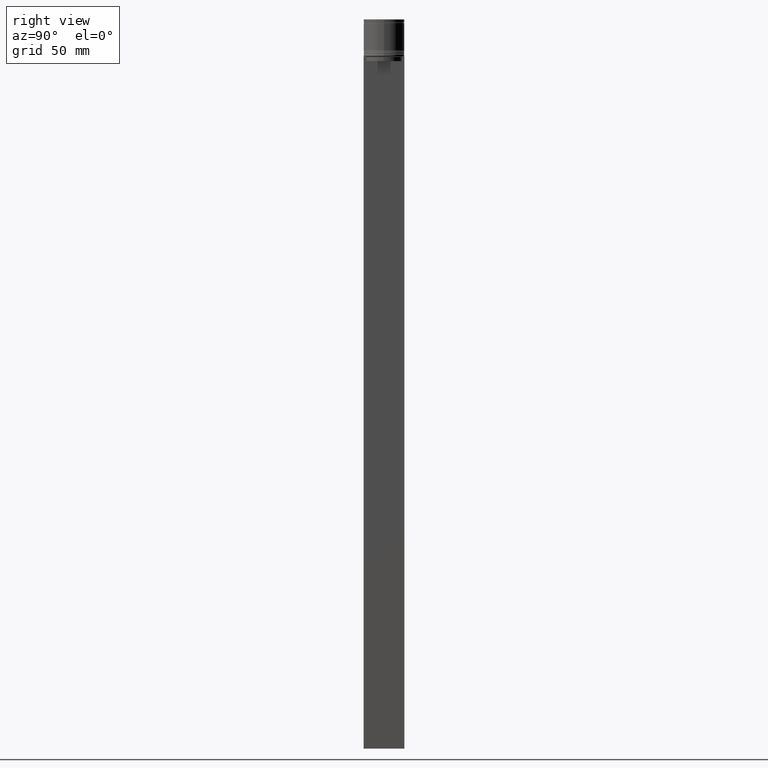
[diagram: clean part render]
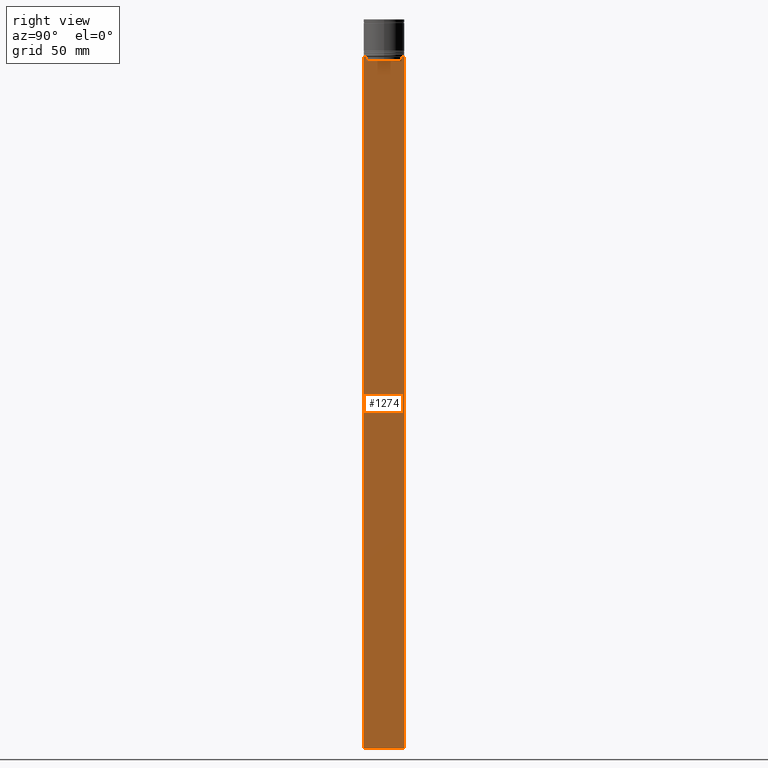
[diagram: same view with one face highlighted and labeled with its STEP entity id]
A machine part, right view. The second image highlights one B-rep face of the part: STEP entity #1274.
In plain terms, the highlighted planar face has unit normal (-1, 0, 0).
Its self-contained STEP definition (entity closure, byte-faithful):
#13 = EDGE_CURVE ( 'NONE', #752, #1765, #262, .T. ) ;
#17 = VECTOR ( 'NONE', #1455, 1000.000000000000000 ) ;
#32 = CARTESIAN_POINT ( 'NONE',  ( 0.5000000000000000000, -10.88852607105297032, -22.99999999999999645 ) ) ;
#33 = EDGE_CURVE ( 'NONE', #1561, #1200, #1703, .T. ) ;
#71 = CARTESIAN_POINT ( 'NONE',  ( 0.5000000000000000000, -12.49999999999999289, 2.519992006393609874 ) ) ;
#87 = VECTOR ( 'NONE', #829, 1000.000000000000000 ) ;
#131 = VECTOR ( 'NONE', #1801, 1000.000000000000000 ) ;
#150 = CARTESIAN_POINT ( 'NONE',  ( 0.5000000000000000000, -12.49999999999999289, -22.50000000000000000 ) ) ;
#161 = CARTESIAN_POINT ( 'NONE',  ( 0.5000000000000000000, -11.38902980942626897, -22.50000000000000000 ) ) ;
#166 = DIRECTION ( 'NONE',  ( 0.000000000000000000, -1.000000000000000000, 0.000000000000000000 ) ) ;
#175 = CARTESIAN_POINT ( 'NONE',  ( 0.5000000000000000000, -10.88852607105296855, -25.50000000000000000 ) ) ;
#181 = ORIENTED_EDGE ( 'NONE', *, *, #384, .T. ) ;
#203 = LINE ( 'NONE', #849, #1368 ) ;
#210 = CARTESIAN_POINT ( 'NONE',  ( 0.5000000000000000000, 12.50000000000000711, -446.5000000000000000 ) ) ;
#235 = CARTESIAN_POINT ( 'NONE',  ( 0.5000000000000000000, 11.38902980942626897, -22.50000000000000000 ) ) ;
#262 = B_SPLINE_CURVE_WITH_KNOTS ( 'NONE', 3,
 ( #235, #565, #1552, #412 ),
 .UNSPECIFIED., .F., .F.,
 ( 4, 4 ),
 ( 0.01935560801904635808, 0.02006307108468587813 ),
 .UNSPECIFIED. ) ;
#277 = DIRECTION ( 'NONE',  ( -1.000000000000000000, 0.000000000000000000, 0.000000000000000000 ) ) ;
#300 = EDGE_CURVE ( 'NONE', #1186, #1757, #507, .T. ) ;
#341 = CARTESIAN_POINT ( 'NONE',  ( 0.5000000000000000000, -12.49999999999999289, -22.50000000000000000 ) ) ;
#349 = ORIENTED_EDGE ( 'NONE', *, *, #1043, .T. ) ;
#370 = CARTESIAN_POINT ( 'NONE',  ( 0.5000000000000000000, -10.88852607105297032, 0.000000000000000000 ) ) ;
#384 = EDGE_CURVE ( 'NONE', #885, #2085, #1313, .T. ) ;
#400 = ORIENTED_EDGE ( 'NONE', *, *, #981, .T. ) ;
#402 = VERTEX_POINT ( 'NONE', #619 ) ;
#407 = DIRECTION ( 'NONE',  ( 0.000000000000000000, 0.000000000000000000, -1.000000000000000000 ) ) ;
#412 = CARTESIAN_POINT ( 'NONE',  ( 0.5000000000000000000, 10.88852607105297032, -22.99999999999999645 ) ) ;
#507 = LINE ( 'NONE', #1497, #87 ) ;
#512 = EDGE_CURVE ( 'NONE', #899, #752, #203, .T. ) ;
#565 = CARTESIAN_POINT ( 'NONE',  ( 0.5000000000000000000, 11.22219891375843126, -22.66667035472756808 ) ) ;
#571 = ORIENTED_EDGE ( 'NONE', *, *, #13, .T. ) ;
#619 = CARTESIAN_POINT ( 'NONE',  ( 0.5000000000000000000, -12.49999999999999289, -446.5000000000000000 ) ) ;
#633 = AXIS2_PLACEMENT_3D ( 'NONE', #1895, #277, #1407 ) ;
#653 = LINE ( 'NONE', #2029, #661 ) ;
#661 = VECTOR ( 'NONE', #1691, 1000.000000000000000 ) ;
#693 = VECTOR ( 'NONE', #1357, 1000.000000000000000 ) ;
#707 = ORIENTED_EDGE ( 'NONE', *, *, #1343, .T. ) ;
#739 = ORIENTED_EDGE ( 'NONE', *, *, #1708, .T. ) ;
#752 = VERTEX_POINT ( 'NONE', #2057 ) ;
#803 = LINE ( 'NONE', #370, #17 ) ;
#829 = DIRECTION ( 'NONE',  ( 0.000000000000000000, 0.000000000000000000, -1.000000000000000000 ) ) ;
#841 = DIRECTION ( 'NONE',  ( 0.000000000000000000, -1.000000000000000000, 0.000000000000000000 ) ) ;
#849 = CARTESIAN_POINT ( 'NONE',  ( 0.5000000000000000000, -12.49999999999999289, -22.50000000000000000 ) ) ;
#879 = CARTESIAN_POINT ( 'NONE',  ( 0.5000000000000000000, -12.49999999999999289, -22.50000000000000000 ) ) ;
#885 = VERTEX_POINT ( 'NONE', #32 ) ;
#899 = VERTEX_POINT ( 'NONE', #1136 ) ;
#918 = ORIENTED_EDGE ( 'NONE', *, *, #512, .T. ) ;
#925 = PLANE ( 'NONE',  #633 ) ;
#955 = CARTESIAN_POINT ( 'NONE',  ( 0.5000000000000000000, -12.38991525394746596, -22.50000000000000000 ) ) ;
#981 = EDGE_CURVE ( 'NONE', #2085, #1561, #1490, .T. ) ;
#1041 = EDGE_CURVE ( 'NONE', #1951, #885, #803, .T. ) ;
#1043 = EDGE_CURVE ( 'NONE', #1765, #1413, #653, .T. ) ;
#1092 = ORIENTED_EDGE ( 'NONE', *, *, #1876, .T. ) ;
#1136 = CARTESIAN_POINT ( 'NONE',  ( 0.5000000000000000000, 12.38991525394746596, -22.50000000000000000 ) ) ;
#1146 = CARTESIAN_POINT ( 'NONE',  ( 0.5000000000000000000, -12.49999999999999289, -446.5000000000000000 ) ) ;
#1175 = CARTESIAN_POINT ( 'NONE',  ( 0.5000000000000000000, 10.90000000000000924, -25.50000000000000000 ) ) ;
#1186 = VERTEX_POINT ( 'NONE', #1989 ) ;
#1199 = CARTESIAN_POINT ( 'NONE',  ( 0.5000000000000000000, -11.05536450423839412, -22.83333718996392747 ) ) ;
#1200 = VERTEX_POINT ( 'NONE', #1394 ) ;
#1203 = DIRECTION ( 'NONE',  ( 0.000000000000000000, -1.000000000000000000, 0.000000000000000000 ) ) ;
#1242 = LINE ( 'NONE', #71, #1479 ) ;
#1274 = ADVANCED_FACE ( 'NONE', ( #1716 ), #925, .F. ) ;
#1313 = B_SPLINE_CURVE_WITH_KNOTS ( 'NONE', 3,
 ( #2004, #1199, #1857, #161 ),
 .UNSPECIFIED., .F., .F.,
 ( 4, 4 ),
 ( 0.05041323384703231408, 0.05112713601261610619 ),
 .UNSPECIFIED. ) ;
#1331 = ORIENTED_EDGE ( 'NONE', *, *, #300, .F. ) ;
#1336 = LINE ( 'NONE', #1175, #2080 ) ;
#1343 = EDGE_CURVE ( 'NONE', #1186, #899, #1767, .T. ) ;
#1357 = DIRECTION ( 'NONE',  ( 0.000000000000000000, -1.000000000000000000, 0.000000000000000000 ) ) ;
#1368 = VECTOR ( 'NONE', #841, 1000.000000000000000 ) ;
#1394 = CARTESIAN_POINT ( 'NONE',  ( 0.5000000000000000000, -12.49999999999999289, -22.50000000000000000 ) ) ;
#1407 = DIRECTION ( 'NONE',  ( 0.000000000000000000, 0.000000000000000000, 1.000000000000000000 ) ) ;
#1413 = VERTEX_POINT ( 'NONE', #1972 ) ;
#1455 = DIRECTION ( 'NONE',  ( -0.000000000000000000, -0.000000000000000000, 1.000000000000000000 ) ) ;
#1465 = VECTOR ( 'NONE', #166, 1000.000000000000000 ) ;
#1475 = EDGE_CURVE ( 'NONE', #1413, #1951, #1336, .T. ) ;
#1479 = VECTOR ( 'NONE', #407, 1000.000000000000000 ) ;
#1487 = ORIENTED_EDGE ( 'NONE', *, *, #1475, .T. ) ;
#1490 = LINE ( 'NONE', #341, #1465 ) ;
#1497 = CARTESIAN_POINT ( 'NONE',  ( 0.5000000000000000000, 12.50000000000000711, 2.519992006393609874 ) ) ;
#1525 = ORIENTED_EDGE ( 'NONE', *, *, #33, .T. ) ;
#1539 = VECTOR ( 'NONE', #1203, 1000.000000000000000 ) ;
#1552 = CARTESIAN_POINT ( 'NONE',  ( 0.5000000000000000000, 11.05536450345590715, -22.83333719074559554 ) ) ;
#1561 = VERTEX_POINT ( 'NONE', #955 ) ;
#1653 = CARTESIAN_POINT ( 'NONE',  ( 0.5000000000000000000, -11.38902980942626897, -22.50000000000000000 ) ) ;
#1681 = CARTESIAN_POINT ( 'NONE',  ( 0.5000000000000000000, 10.88852607105297032, -22.99999999999999645 ) ) ;
#1691 = DIRECTION ( 'NONE',  ( 0.000000000000000000, 0.000000000000000000, -1.000000000000000000 ) ) ;
#1703 = LINE ( 'NONE', #879, #1539 ) ;
#1708 = EDGE_CURVE ( 'NONE', #1200, #402, #1242, .T. ) ;
#1716 = FACE_OUTER_BOUND ( 'NONE', #1913, .T. ) ;
#1757 = VERTEX_POINT ( 'NONE', #210 ) ;
#1765 = VERTEX_POINT ( 'NONE', #1681 ) ;
#1767 = LINE ( 'NONE', #150, #693 ) ;
#1801 = DIRECTION ( 'NONE',  ( 0.000000000000000000, 1.000000000000000000, 0.000000000000000000 ) ) ;
#1812 = ORIENTED_EDGE ( 'NONE', *, *, #1041, .T. ) ;
#1832 = DIRECTION ( 'NONE',  ( 0.000000000000000000, -1.000000000000000000, 0.000000000000000000 ) ) ;
#1857 = CARTESIAN_POINT ( 'NONE',  ( 0.5000000000000000000, -11.22219891450653151, -22.66667035398018726 ) ) ;
#1876 = EDGE_CURVE ( 'NONE', #402, #1757, #1931, .T. ) ;
#1895 = CARTESIAN_POINT ( 'NONE',  ( 0.5000000000000000000, -12.49999999999999289, 2.519992006393609874 ) ) ;
#1913 = EDGE_LOOP ( 'NONE', ( #918, #571, #349, #1487, #1812, #181, #400, #1525, #739, #1092, #1331, #707 ) ) ;
#1931 = LINE ( 'NONE', #1146, #131 ) ;
#1951 = VERTEX_POINT ( 'NONE', #175 ) ;
#1972 = CARTESIAN_POINT ( 'NONE',  ( 0.5000000000000000000, 10.88852607105296855, -25.50000000000000000 ) ) ;
#1989 = CARTESIAN_POINT ( 'NONE',  ( 0.5000000000000000000, 12.50000000000000711, -22.50000000000000000 ) ) ;
#2004 = CARTESIAN_POINT ( 'NONE',  ( 0.5000000000000000000, -10.88852607105297032, -22.99999999999999645 ) ) ;
#2029 = CARTESIAN_POINT ( 'NONE',  ( 0.5000000000000000000, 10.88852607105297032, 0.000000000000000000 ) ) ;
#2057 = CARTESIAN_POINT ( 'NONE',  ( 0.5000000000000000000, 11.38902980942626897, -22.50000000000000000 ) ) ;
#2080 = VECTOR ( 'NONE', #1832, 1000.000000000000000 ) ;
#2085 = VERTEX_POINT ( 'NONE', #1653 ) ;